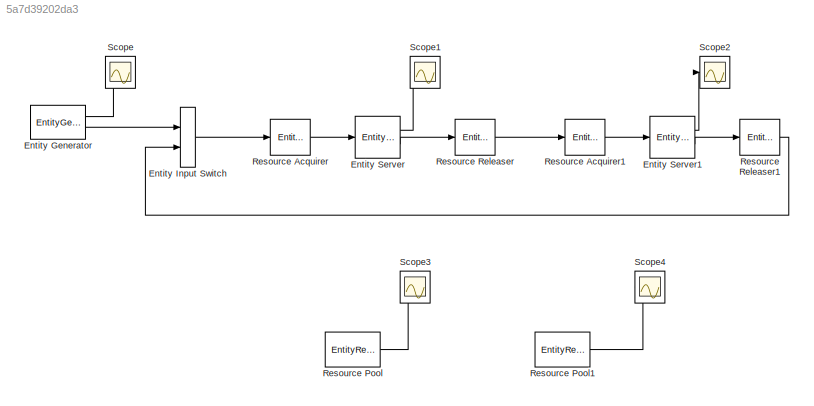
MODEL slx_5a7d39202da3
KIND model
CONFIG AbsTol = auto
CONFIG FixedStep = auto
CONFIG MaxStep = auto
CONFIG MinStep = auto
CONFIG RelTol = 1e-3
CONFIG SampleTimeConstraint = Unconstrained
CONFIG Solver = VariableStepDiscrete
CONFIG SolverMode = Auto
CONFIG SolverName = VariableStepDiscrete
CONFIG StartTime = 0.0
CONFIG StopTime = 2080
BLOCK [EntityGenerator] Entity Generator
  EntityType = Structured
  EntityTypeName = Entity
  IntergenerationTimeAction = persistent count\nif (isempty(count))\n    count = 1;\nend\nif (count < 54)\n    dt = 0;\n    count = count + 1;\nelse\n    dt = inf;\nend
  NumberEntitiesDeparted = on
  OutputPortMap = o0,o3
  OutputPortMessageModes = n,m
  Ports = [0, 2]
  TimeSource = MATLAB action
BLOCK [EntityInputSwitch] Entity Input Switch
  InputPortMap = u1,u2
  InputPortMessageModes = m,m
  OutputPortMap = o0
  OutputPortMessageModes = m
  Ports = [2, 1]
BLOCK [EntityServer] Entity Server
  Capacity = 50
  InputPortMap = u2
  InputPortMessageModes = m
  NumberEntitiesDeparted = on
  OutputPortMap = o0,o9
  OutputPortMessageModes = n,m
  Ports = [1, 2]
  ServiceTimeAction = persistent init\nif (isempty(init))\n    rng(379);\n    init = true;\nend\ndt = 132 + 50 * rand;
  ServiceTimeSource = MATLAB action
BLOCK [EntityServer] Entity Server1
  Capacity = 3
  InputPortMap = u2
  InputPortMessageModes = m
  NumberEntitiesDeparted = on
  OutputPortMap = o0,o9
  OutputPortMessageModes = n,m
  Ports = [1, 2]
  ServiceTimeAction = persistent init\nif (isempty(init))\n    rng(378);\n    init = true;\nend\ndt = 4 + 6 * rand;
  ServiceTimeSource = MATLAB action
BLOCK [EntityResourceAcquirer] Resource Acquirer
  InputPortMap = u0
  InputPortMessageModes = m
  NumberWaitingEntities = 60
  OutputPortMap = o3
  OutputPortMessageModes = m
  Ports = [1, 1]
  ResourceName = Machine
BLOCK [EntityResourceAcquirer] Resource Acquirer1
  InputPortMap = u0
  InputPortMessageModes = m
  NumberWaitingEntities = 60
  OutputPortMap = o3
  OutputPortMessageModes = m
  Ports = [1, 1]
  ResourceName = Men
BLOCK [EntityResourcePool] Resource Pool
  AmountInUse = on
  OutputPortMap = o0
  Ports = [0, 1]
  ResourceAmount = 50
  ResourceName = Machine
BLOCK [EntityResourcePool] Resource Pool1
  AmountInUse = on
  OutputPortMap = o0
  Ports = [0, 1]
  ResourceAmount = 3
  ResourceName = Men
BLOCK [EntityResourceReleaser] Resource Releaser
  InputPortMap = u0
  InputPortMessageModes = m
  OutputPortMap = o0
  OutputPortMessageModes = m
  Ports = [1, 1]
  ResourceName = Machine
  ResourceToRelease = Selected
BLOCK [EntityResourceReleaser] Resource Releaser1
  InputPortMap = u0
  InputPortMessageModes = m
  OutputPortMap = o0
  OutputPortMessageModes = m
  Ports = [1, 1]
  ResourceName = Men
  ResourceToRelease = Selected
BLOCK [Scope] Scope
  Ports = [1]
  ScopeSpecificationString = C++SS(StrPVP('SaveName','ScopeData'))
BLOCK [Scope] Scope1
  Ports = [1]
  ScopeSpecificationString = C++SS(StrPVP('SaveName','ScopeData'),StrPVP('SaveName','ScopeData1'))
BLOCK [Scope] Scope2
  Ports = [1]
  ScopeSpecificationString = C++SS(StrPVP('SaveName','ScopeData'),StrPVP('SaveName','ScopeData1'),StrPVP('SaveName','ScopeData2'))
BLOCK [Scope] Scope3
  Ports = [1]
  ScopeSpecificationString = Simulink.scopes.TimeScopeBlockCfg('CurrentConfiguration', extmgr.ConfigurationSet(extmgr.Configuration('Core','General UI',true),extmgr.Configuration('Core','Source UI',true),extmgr.Configuration('Sources','WiredSimulink',true,'DataLoggingVariableName','ScopeData3'),extmgr.Configuration('Visuals','Time Domain',true,'SerializedDisplays',{struct('MinYLimReal','-5.125','MaxYLimReal','56.125','YLabelR...<+1512ch>
BLOCK [Scope] Scope4
  Ports = [1]
  ScopeSpecificationString = Simulink.scopes.TimeScopeBlockCfg('CurrentConfiguration', extmgr.ConfigurationSet(extmgr.Configuration('Core','General UI',true),extmgr.Configuration('Core','Source UI',true),extmgr.Configuration('Sources','WiredSimulink',true,'DataLoggingVariableName','ScopeData4'),extmgr.Configuration('Visuals','Time Domain',true,'SerializedDisplays',{struct('MinYLimReal','-0.375','MaxYLimReal','3.375','YLabelRe...<+1478ch>
LINE Entity Generator:1 -> Scope:1
LINE Entity Generator:2 -> Entity Input Switch:1
LINE Entity Input Switch:1 -> Resource Acquirer:1
LINE Entity Server1:1 -> Scope2:1
LINE Entity Server1:2 -> Resource Releaser1:1
LINE Entity Server:1 -> Scope1:1
LINE Entity Server:2 -> Resource Releaser:1
LINE Resource Acquirer1:1 -> Entity Server1:1
LINE Resource Acquirer:1 -> Entity Server:1
LINE Resource Pool1:1 -> Scope4:1
LINE Resource Pool:1 -> Scope3:1
LINE Resource Releaser1:1 -> Entity Input Switch:2
LINE Resource Releaser:1 -> Resource Acquirer1:1
